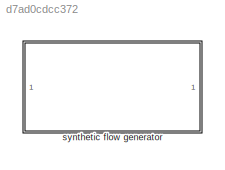
MODEL slx_d7ad0cdcc372
KIND library
CONFIG AbsTol = auto
CONFIG EnableMultiTasking = off
CONFIG FixedStep = auto
CONFIG MaxStep = auto
CONFIG MinStep = auto
CONFIG RelTol = 1e-3
CONFIG SampleTimeConstraint = Unconstrained
CONFIG Solver = VariableStepAuto
CONFIG SolverName = VariableStepAuto
CONFIG StartTime = 0.0
CONFIG StopTime = 10.0
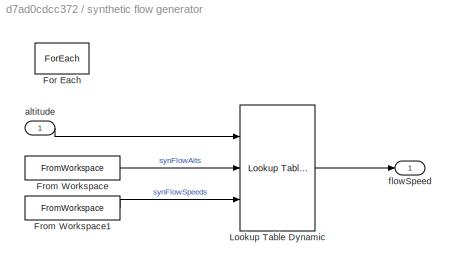
BLOCK [SubSystem] synthetic flow generator
  Ports = [1, 1]
  RequestExecContextInheritance = off
BLOCK [ForEach] synthetic flow generator/For Each
  DisableCoverage = on
  Ports = []
BLOCK [FromWorkspace] synthetic flow generator/From Workspace
  VariableName = synFlowAlts
BLOCK [FromWorkspace] synthetic flow generator/From Workspace1
  VariableName = synFlowSpeed
BLOCK [Reference] synthetic flow generator/Lookup Table Dynamic  REF=simulink/Lookup
Tables/Lookup
Table
Dynamic
  Ports = [3, 1]
  SourceBlock = simulink/Lookup\nTables/Lookup\nTable\nDynamic
  SourceProductBaseCode = SL
  SourceType = Lookup Table Dynamic
BLOCK [Inport] synthetic flow generator/altitude
  Partition = on
  PartitionDimension = 1
  PartitionOffset = 0
  PartitionWidth = 1
BLOCK [Outport] synthetic flow generator/flowSpeed
  ConcatenationDimension = 1
LINE synthetic flow generator/From Workspace1:1 -> synthetic flow generator/Lookup Table Dynamic:3
LINE synthetic flow generator/From Workspace:1 -> synthetic flow generator/Lookup Table Dynamic:2
LINE synthetic flow generator/Lookup Table Dynamic:1 -> synthetic flow generator/flowSpeed:1
LINE synthetic flow generator/altitude:1 -> synthetic flow generator/Lookup Table Dynamic:1
